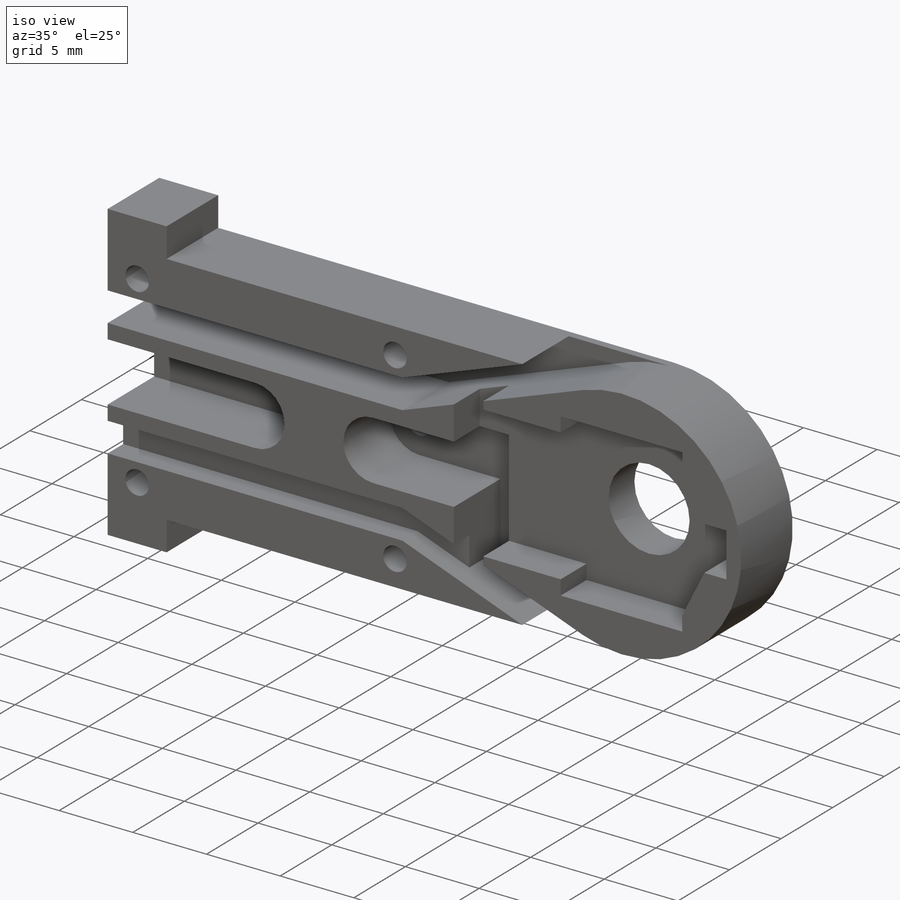
[diagram: iso view]
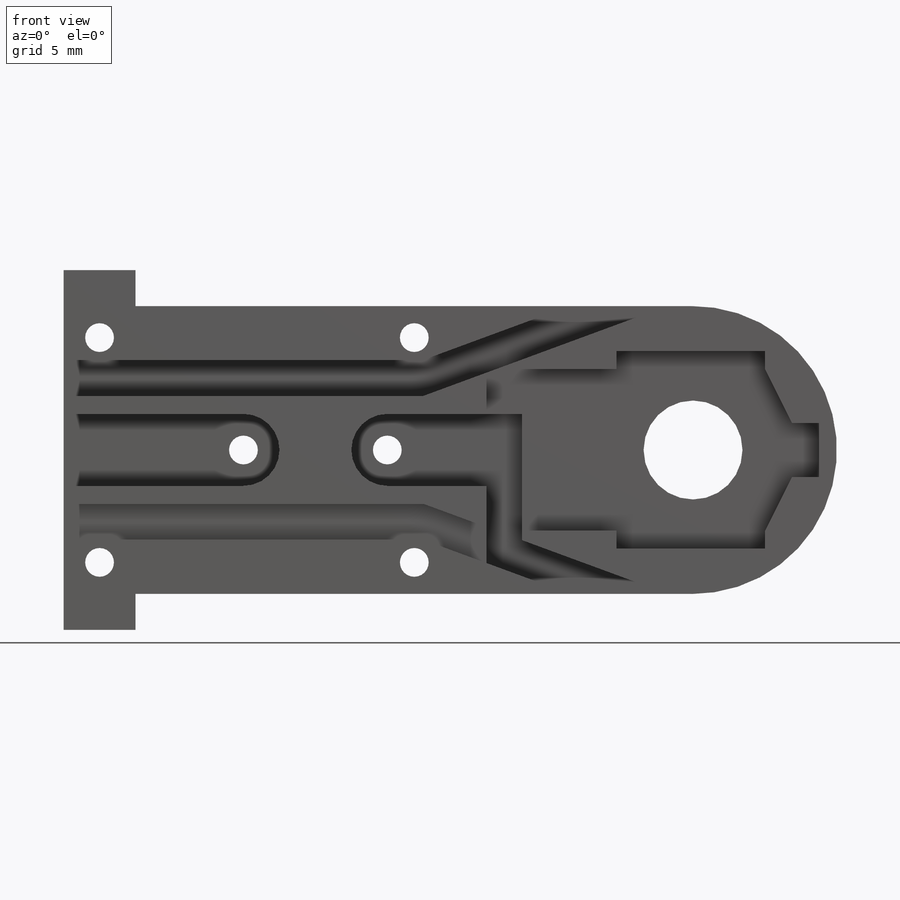
[diagram: front view]
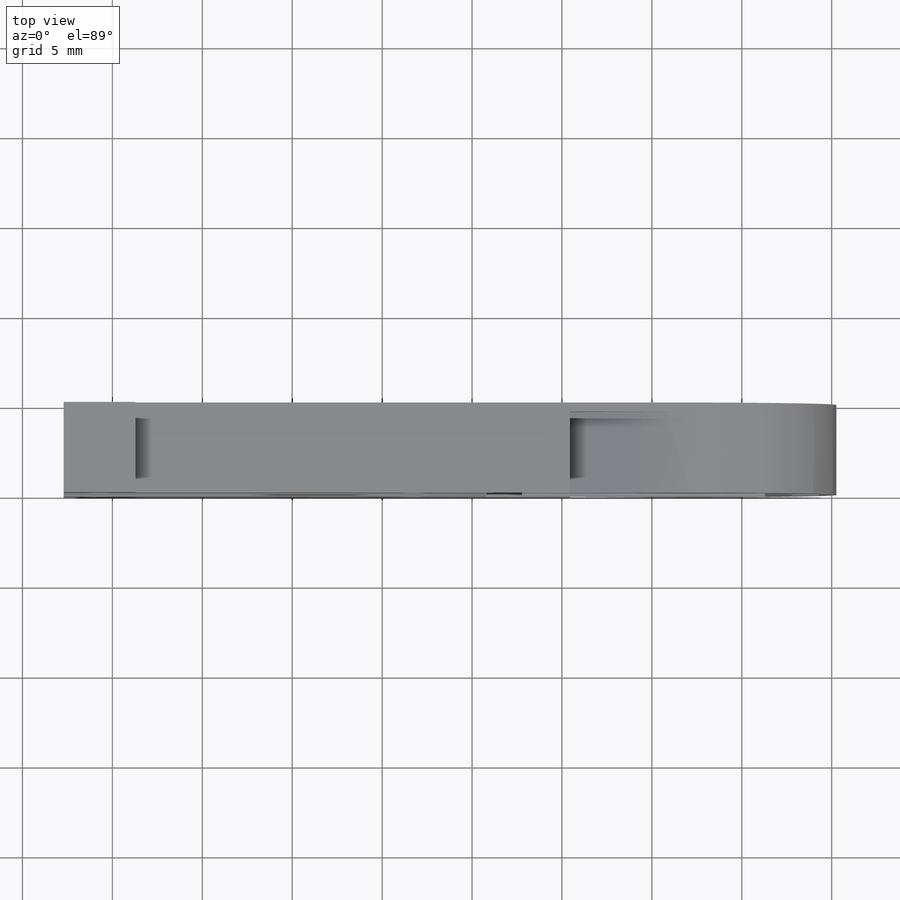
[diagram: top view]
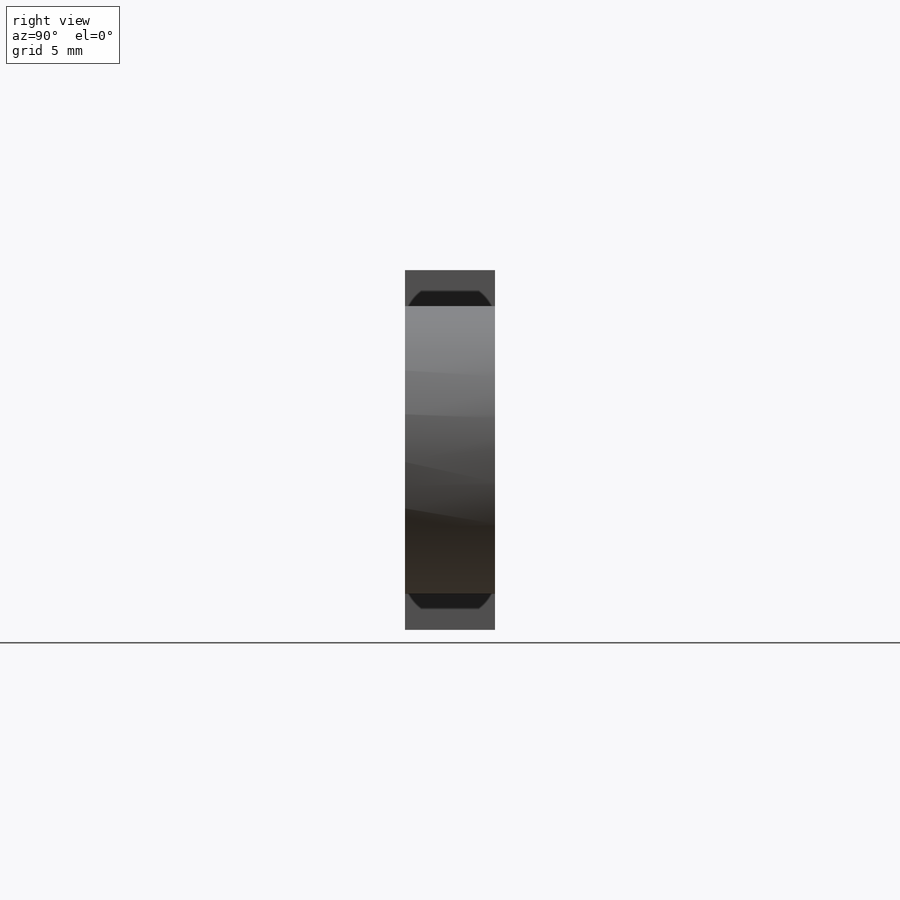
[diagram: right view]
SOLIDWORKS PART (.sldprt)
format: sldprt  version: not decoded by parser v0  size: 446,464 bytes
history: native  units: mm
features: sketch x9, cut_extrude x8, material x1, extrude x1 (+15 scaffold rows collapsed; 2 parser-record rows omitted)
feature tree (36):
  scaffold x15  (default folders/planes/origin — collapsed)
  material  "Material <not specified>"
  sketch  "Sketch1"  dims[D1=~1.324402mm]
  extrude  "Boss-Extrude1"  Depth=5mm
  parser-record x2  (decoder bookkeeping rows leaked as tree rows — omitted from the tree; the rows remain in map.json)
  sketch  "Sketch4"  dims[D1=2.765mm]
  cut_extrude  "Pot Hole"  [1 undecoded]
  sketch  "Sketch3"  dims[D1=9.5mm]
  cut_extrude  "Pot Insert"  Depth=2.5mm
  sketch  "Sketch16"  dims[D1=~3.821425mm]
  cut_extrude  "Middle Flexion"  Depth=2.5mm
  sketch  "Sketch11"  dims[D1=3.0mm]
  cut_extrude  "Middle Extension"  Depth=5.5mm
  sketch  "Sketch8"  dims[c1.D1=2.0mm c1.D2=4.0mm c2.D1=10.0mm c2.D2=~3.331608mm c3.D1=~10.80358mm]
  cut_extrude  "Proximal Flexion/Extension"  Depth=5.5mm
  sketch  "Sketch9"  dims[D1=8.0mm]
  cut_extrude  "Screw Holes"  [1 undecoded]
  sketch  "Sketch12"  dims[D1=5.5mm]
  cut_extrude  "Cut-Extrude4"  Depth=5.5mm
  sketch  "Sketch13"  dims[D1=~3.026024mm]
  cut_extrude  "Cut-Extrude5"  Depth=2.5mm
decode coverage: 16 of 18 modeling features carry decoded parameters
note: ~ marks probable driven/reference dimensions
note: 2 parameter values undecoded
note: suppression state not decoded; provenance and decode notes live in map.json
